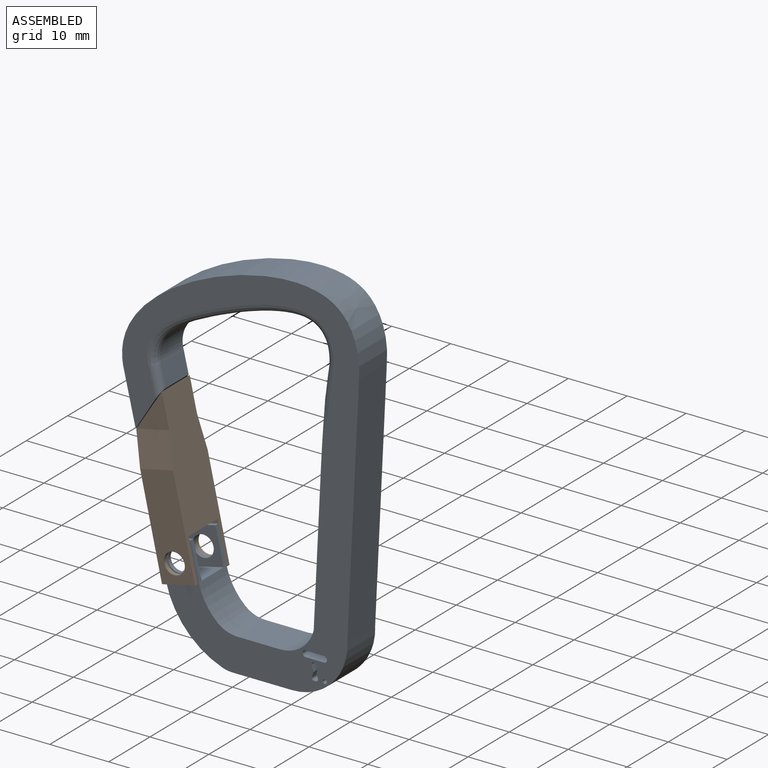
[diagram: assembled view]
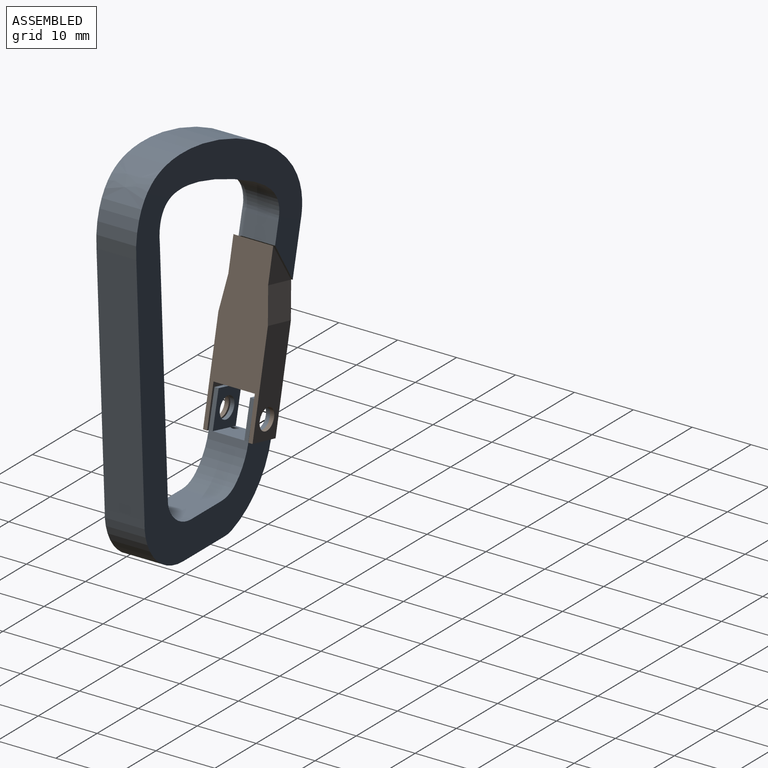
[diagram: assembled view, second angle]
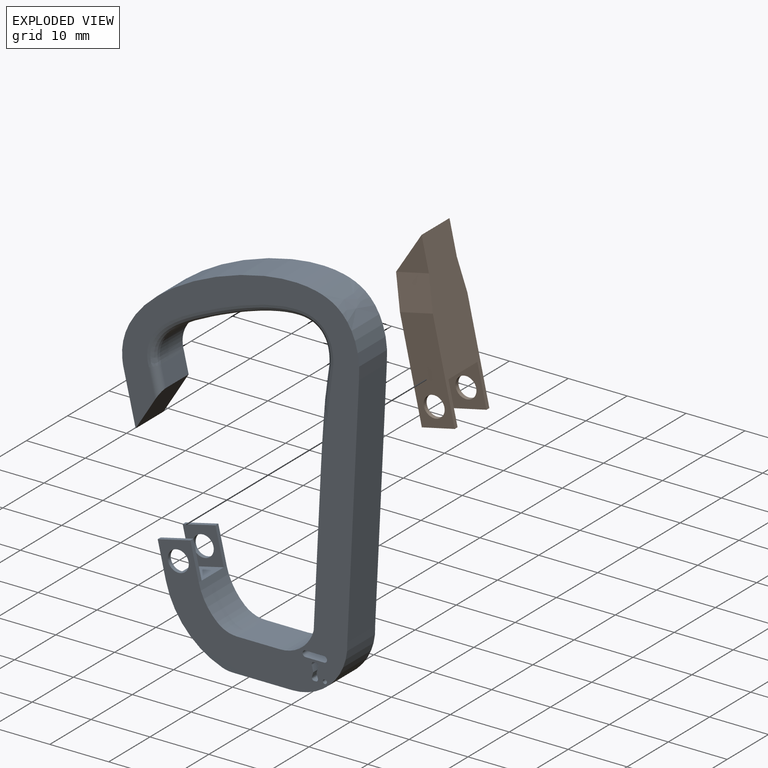
[diagram: exploded view]
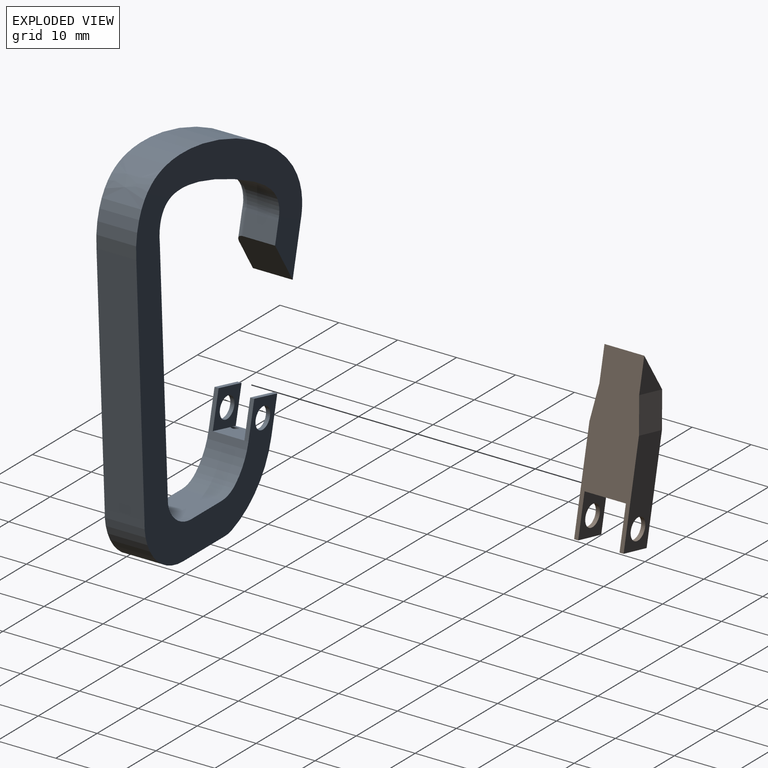
[diagram: exploded view, second angle]
ASSEMBLY  parts=2 mates=2
PART A: 50 faces, bbox 42.1x7.6x64.4 mm
  f0: plane 63.54x41.25mm, normal (0,-1,0), area 686.5mm2, adj f1,f2,f3,f5,f6,f7,f8,f10
  f1: plane 6.06x1.42mm, normal (0.97,0,0.23), area 4.3mm2, adj f0,f2,f13,f24
  f2: plane 5.57x1.3mm, normal (-0.23,0,0.97), area 4mm2, adj f0,f1,f3,f24
  f3: plane 6.06x1.42mm, normal (-0.97,0,-0.23), area 4.3mm2, adj f0,f2,f14,f24
  f4: cylinder r=1.78mm len=3.56mm, axis (0,-1,0), area 7.8mm2, adj f15,f23
  f5: plane 10.13x6.76mm, normal (0,0,-1), area 68.4mm2, adj f0,f6,f15,f47
  f6: cylinder r=9.39mm len=9.86mm, axis (0,-1,0), area 102.8mm2, adj f0,f5,f7,f15
  f7: plane 40.72x6.76mm, normal (1,0,-0.05), area 275.5mm2, adj f0,f6,f8,f15
  f8: extruded ~40.28x20.65mm, area 394.7mm2, adj f0,f7,f15,f19
  f9: extruded ~29.04x13.98mm, area 217.5mm2, adj f10,f15,f21,f48
  f10: plane 41.6x7.63mm, normal (-1,0,0.05), area 271.2mm2, adj f0,f9,f11,f15,f48
  f11: cylinder r=5.88mm len=6.76mm, axis (0,-1,0), area 52.4mm2, adj f0,f10,f12,f15
  f12: plane 7.3x6.76mm, normal (0,0,1), area 49.3mm2, adj f0,f11,f15,f46
  f13: cylinder r=10.26mm len=6.76mm, axis (0,-1,0), area 42mm2, adj f0,f1,f15,f16,f25,f46
  f14: cylinder r=14.98mm len=10.71mm, axis (0,-1,0), area 101.2mm2, adj f0,f3,f15,f18,f25,f47
  f15: plane 63.54x41.25mm, normal (0,1,0), area 762.3mm2, adj f4,f5,f6,f7,f8,f9,f10,f11
  f16: plane 6.06x1.42mm, normal (0.97,0,0.23), area 4.3mm2, adj f13,f15,f17,f23
  f17: plane 5.57x1.3mm, normal (-0.23,0,0.97), area 4mm2, adj f15,f16,f18,f23
  f18: plane 6.06x1.42mm, normal (-0.97,0,-0.23), area 4.3mm2, adj f14,f15,f17,f23
  f19: plane 9.03x6.76mm, normal (-0.97,0,-0.23), area 62.6mm2, adj f0,f8,f15,f20
  f20: plane 7.4x7.29mm, normal (0.85,0,-0.53), area 54.1mm2, adj f0,f15,f19,f21,f49
  f21: plane 5.49x3.46mm, normal (0.97,0,0.23), area 19.5mm2, adj f9,f15,f20,f49
  f22: cylinder r=1.78mm len=3.56mm, axis (0,-1,0), area 7.8mm2, adj f0,f24
  f23: plane 7.36x6.98mm, normal (0,-1,0), area 25.6mm2, adj f4,f16,f17,f18,f25
  f24: plane 7.36x6.98mm, normal (0,1,0), area 25.6mm2, adj f1,f2,f3,f22,f25
  f25: plane 5.57x5.36mm, normal (-0.23,0,0.97), area 29.5mm2, adj f13,f14,f23,f24,f44
  f26: plane 3.05x1.11mm, normal (0.97,0,0.24), area 3.5mm2, adj f0,f27,f35,f36
  f27: plane 3.05x0.81mm, normal (0.96,0,-0.29), area 2.6mm2, adj f0,f26,f28,f36
  f28: extruded ~3.05x0.48mm, area 2mm2, adj f0,f27,f29,f36
  f29: plane 3.05x0.36mm, normal (0,0,1), area 1.1mm2, adj f0,f28,f30,f36
  f30: extruded ~3.05x0.48mm, area 2mm2, adj f0,f29,f31,f36
  f31: plane 3.05x0.81mm, normal (-0.96,0,-0.29), area 2.6mm2, adj f0,f30,f32,f36
  f32: plane 3.05x1.11mm, normal (-0.97,0,0.24), area 3.5mm2, adj f0,f31,f33,f36
  f33: extruded ~3.05x0.46mm, area 2mm2, adj f0,f32,f34,f36
  f34: plane 3.05x0.36mm, normal (0,0,-1), area 1.1mm2, adj f0,f33,f35,f36
  f35: extruded ~3.05x0.46mm, area 2mm2, adj f0,f26,f34,f36
  f36: plane 2.86x1.14mm, normal (0,-1,0), area 2.4mm2, adj f26,f27,f28,f29,f30,f31,f32,f33
  f37: cylinder r=0.35mm len=3.05mm, axis (0,-1,0), area 6.7mm2, adj f0,f38
  f38: plane 0.7x0.7mm, normal (0,-1,0), area 0.4mm2, adj f37
  f39: plane 3.21x3.05mm, normal (0,0,-1), area 9.8mm2, adj f0,f40,f42,f43
  f40: cylinder r=0.52mm len=3.05mm, axis (0,-1,0), area 4.6mm2, adj f0,f39,f41,f43
  f41: plane 3.21x3.05mm, normal (0,0,1), area 9.8mm2, adj f0,f40,f42,f43
  f42: cylinder r=0.51mm len=3.05mm, axis (0,-1,0), area 4.7mm2, adj f0,f39,f41,f43
  f43: plane 4.15x1.03mm, normal (0,-1,0), area 4mm2, adj f39,f40,f41,f42
  f44: cylinder r=0.6mm len=2.74mm, axis (-0.23,0,0.97), area 9.5mm2, adj f25,f45
  f45: plane 1.19x1.16mm, normal (-0.23,0,0.97), area 1.1mm2, adj f44
  f46: cylinder r=5.08mm len=6.76mm, axis (0,-1,0), area 25.2mm2, adj f0,f12,f13,f15
  f47: cylinder r=5.08mm len=6.76mm, axis (0,-1,0), area 11.7mm2, adj f0,f5,f14,f15
  f48: bspline ~31.61x24.11mm, area 98mm2, adj f0,f9,f10,f49
  f49: cylinder r=1.27mm len=4.99mm, axis (-0.23,0,0.97), area 8.3mm2, adj f0,f20,f21,f48
PART B: 18 faces, bbox 5.7x8.4x28.5 mm
  f0: plane 6.76x5.72mm, normal (-0.71,0,0.71), area 54.6mm2, adj f1,f3,f12,f14
  f1: plane 22.78x8.41mm, normal (-1,0,0), area 137mm2, adj f0,f2,f5,f6,f7,f9,f10,f11
  f2: plane 5.72x0.7mm, normal (0,0,-1), area 4mm2, adj f1,f3,f6,f10
  f3: plane 28.5x8.41mm, normal (1,0,0), area 175.6mm2, adj f0,f2,f5,f6,f7,f9,f10,f11
  f4: cylinder r=1.78mm len=3.56mm, axis (0,-1,0), area 7.8mm2, adj f6,f10
  f5: plane 5.72x0.7mm, normal (0,0,-1), area 4mm2, adj f1,f3,f7,f11
  f6: plane 17.11x5.72mm, normal (0,1,0), area 87.8mm2, adj f1,f2,f3,f4,f13
  f7: plane 17.11x5.72mm, normal (0,-1,0), area 87.8mm2, adj f1,f3,f5,f8,f15
  f8: cylinder r=1.78mm len=3.56mm, axis (0,-1,0), area 7.8mm2, adj f7,f11
  f9: plane 7.01x5.72mm, normal (0,0,-1), area 38.9mm2, adj f1,f3,f10,f11,f16
  f10: plane 7.11x5.72mm, normal (0,-1,0), area 30.7mm2, adj f1,f2,f3,f4,f9
  f11: plane 7.11x5.72mm, normal (0,1,0), area 30.7mm2, adj f1,f3,f5,f8,f9
  f12: plane 5.72x5.72mm, normal (0,1,0), area 16.3mm2, adj f0,f3,f13
  f13: plane 5.72x5.68mm, normal (0,0.99,0.14), area 32.8mm2, adj f1,f3,f6,f12
  f14: plane 5.72x5.72mm, normal (0,-1,0), area 16.3mm2, adj f0,f3,f15
  f15: plane 5.72x5.68mm, normal (0,-0.99,0.14), area 32.8mm2, adj f1,f3,f7,f14
  f16: cylinder r=0.6mm len=12.7mm, axis (0,0,-1), area 47.5mm2, adj f9,f17
  f17: plane 1.19x1.19mm, normal (0,0,-1), area 1.1mm2, adj f16
PLACE A t=(36.72,1.97,7.67)mm
PLACE B rot(axis=(0,-1,0),12.6deg) t=(16.25,1.02,-2.38)mm
MATE cylindrical B.f4 <-> A.f4  axis (0,-1,0) through (19.43,9.08,-3.54)mm
MATE planar B.f10 <-> A.f15  axis (0,-1,0) through (19.32,8.73,-3.05)mm
